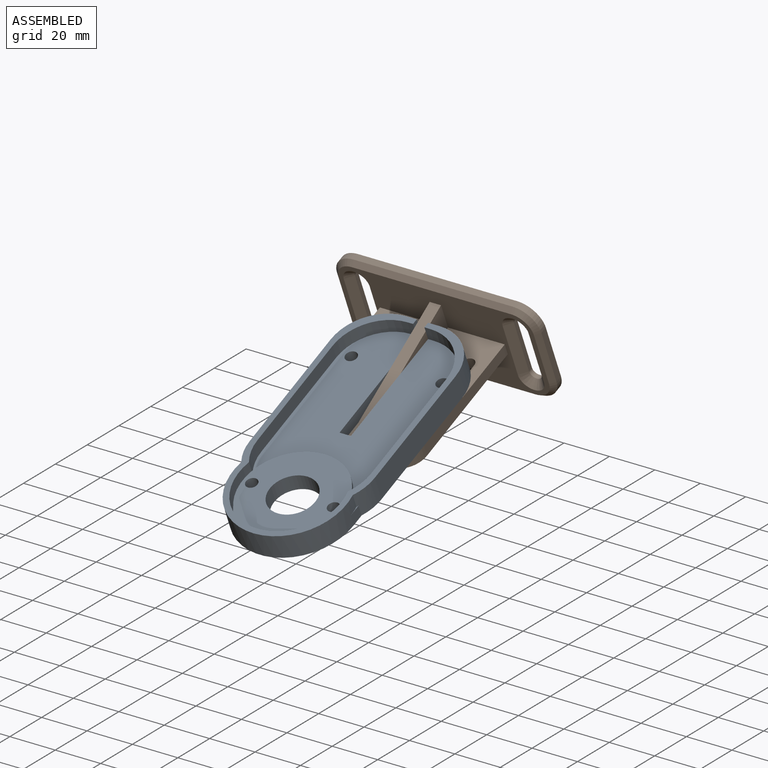
[diagram: assembled view]
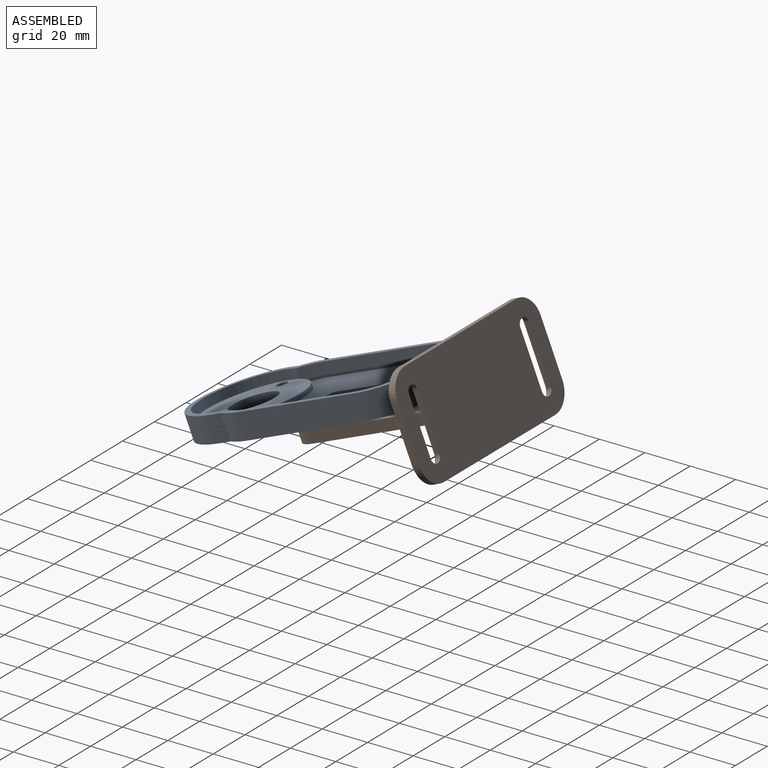
[diagram: assembled view, second angle]
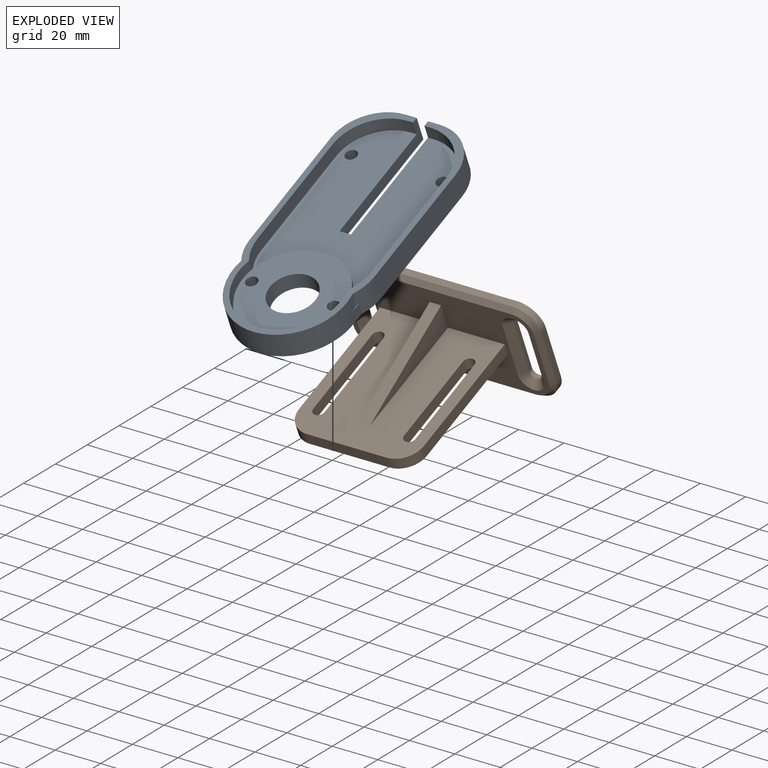
[diagram: exploded view]
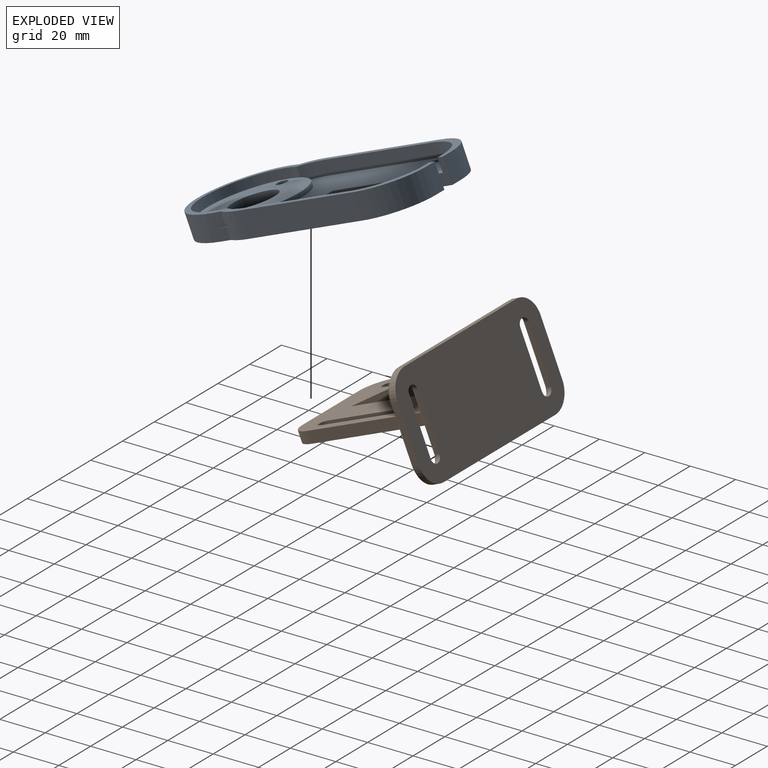
[diagram: exploded view, second angle]
ASSEMBLY  parts=2 mates=2
PART A: 35 faces, bbox 11x55x115 mm
  f0: plane 5.4x0.44mm, normal (-1,0,0), area 0.8mm2, adj f8,f9,f33
  f1: plane 110x50mm, normal (-1,0,0), area 3123.1mm2, adj f3,f4,f5,f11,f12,f16,f21,f22
  f2: plane 11x5mm, normal (0,0,-1), area 55mm2, adj f3,f14,f26,f32
  f3: plane 55x11mm, normal (0,1,0), area 290mm2, adj f1,f2,f4,f14,f24,f26
  f4: plane 5x5mm, normal (0,0,-1), area 25mm2, adj f1,f3,f5,f14
  f5: plane 55x11mm, normal (0,-1,0), area 290mm2, adj f1,f4,f6,f14,f23,f26
  f6: plane 11x5mm, normal (0,0,-1), area 55mm2, adj f5,f14,f26,f31
  f7: plane 54.92x11mm, normal (0,1,0), area 604.1mm2, adj f14,f26,f31,f33
  f8: plane 5.4x5mm, normal (0,1,0), area 27mm2, adj f0,f9,f14,f33
  f9: cylinder r=25mm len=50mm, axis (-1,0,0), area 920.1mm2, adj f0,f8,f10,f14,f15,f26,f33,f34
  f10: plane 5.4x5mm, normal (0,-1,0), area 27mm2, adj f9,f14,f15,f34
  f11: cylinder r=2.5mm len=5mm, axis (-1,0,0), area 78.5mm2, adj f1,f14
  f12: cylinder r=2.5mm len=5mm, axis (-1,0,0), area 78.5mm2, adj f1,f14
  f13: plane 54.92x11mm, normal (0,-1,0), area 604.1mm2, adj f14,f26,f32,f34
  f14: plane 115x55mm, normal (1,0,0), area 5049.7mm2, adj f2,f3,f4,f5,f6,f7,f8,f9
  f15: plane 5.4x0.44mm, normal (-1,0,0), area 0.8mm2, adj f9,f10,f34
  f16: cylinder r=22mm len=44mm, axis (1,0,0), area 276.5mm2, adj f1,f20
  f17: cylinder r=2.5mm len=7mm, axis (1,0,0), area 110mm2, adj f14,f20
  f18: cylinder r=10mm len=20mm, axis (1,0,0), area 439.8mm2, adj f14,f20
  f19: cylinder r=2.5mm len=7mm, axis (1,0,0), area 110mm2, adj f14,f20
  f20: plane 44x44mm, normal (-1,0,0), area 1167.1mm2, adj f16,f17,f18,f19
  f21: cylinder r=22.5mm len=45mm, axis (1,0,0), area 492.1mm2, adj f1,f26,f27,f29
  f22: plane 51.03x6mm, normal (0,-1,0), area 306.2mm2, adj f1,f26,f27,f28
  f23: plane 6x2.5mm, normal (0,0,1), area 15mm2, adj f1,f5,f26,f28
  f24: plane 6x2.5mm, normal (0,0,1), area 15mm2, adj f1,f3,f26,f30
  f25: plane 51.03x6mm, normal (0,1,0), area 306.2mm2, adj f1,f26,f29,f30
  f26: plane 115x55mm, normal (-1,0,0), area 757.7mm2, adj f2,f3,f5,f6,f7,f9,f13,f21
  f27: cylinder r=20mm len=10.87mm, axis (1,0,0), area 68.9mm2, adj f1,f21,f22,f26
  f28: cylinder r=20mm len=20mm, axis (1,0,0), area 188.5mm2, adj f1,f22,f23,f26
  f29: cylinder r=20mm len=10.87mm, axis (-1,0,0), area 68.9mm2, adj f1,f21,f25,f26
  f30: cylinder r=20mm len=20mm, axis (-1,0,0), area 188.5mm2, adj f1,f24,f25,f26
  f31: cylinder r=20mm len=20mm, axis (1,0,0), area 345.6mm2, adj f6,f7,f14,f26
  f32: cylinder r=20mm len=20mm, axis (-1,0,0), area 345.6mm2, adj f2,f13,f14,f26
  f33: cylinder r=20mm len=11mm, axis (1,0,0), area 116.4mm2, adj f0,f7,f8,f9,f14,f26
  f34: cylinder r=20mm len=11mm, axis (-1,0,0), area 116.4mm2, adj f9,f10,f13,f14,f15,f26
PART B: 55 faces, bbox 90x45x70 mm
  f0: plane 65x55mm, normal (0,-1,0), area 2826.1mm2, adj f1,f23,f24,f26,f27,f28,f29,f30
  f1: plane 86x41mm, normal (0,0,1), area 2299mm2, adj f0,f15,f16,f17,f18,f19,f20,f21
  f2: cylinder r=2.75mm len=5.5mm, axis (0,0,-1), area 17.3mm2, adj f3,f13,f14,f15
  f3: plane 25x2mm, normal (-1,0,0), area 50mm2, adj f2,f4,f14,f17
  f4: cylinder r=2.75mm len=5.5mm, axis (0,0,-1), area 17.3mm2, adj f3,f13,f14,f18
  f5: cylinder r=2.75mm len=5.5mm, axis (0,0,-1), area 17.3mm2, adj f6,f11,f14,f19
  f6: plane 25x2mm, normal (-1,0,0), area 50mm2, adj f5,f7,f14,f21
  f7: cylinder r=2.75mm len=5.5mm, axis (0,0,-1), area 17.3mm2, adj f6,f11,f14,f22
  f8: plane 25x3mm, normal (1,0,0), area 75mm2, adj f14,f37,f40,f44
  f9: plane 70x3mm, normal (0,1,0), area 210mm2, adj f14,f37,f38,f48
  f10: plane 25x3mm, normal (-1,0,0), area 75mm2, adj f14,f38,f39,f45
  f11: plane 25x2mm, normal (1,0,0), area 50mm2, adj f5,f7,f14,f20
  f12: plane 70x3mm, normal (0,-1,0), area 210mm2, adj f14,f39,f40,f41
  f13: plane 25x2mm, normal (1,0,0), area 50mm2, adj f2,f4,f14,f16
  f14: plane 90x45mm, normal (0,0,-1), area 3641.6mm2, adj f2,f3,f4,f5,f6,f7,f8,f9
  f15: cone r=2.75mm half-angle=45deg, axis (0,0,1), area 56.6mm2, adj f1,f2,f16,f17
  f16: plane 25x3mm, normal (0.71,0,0.71), area 106.1mm2, adj f1,f13,f15,f18
  f17: plane 25x3mm, normal (-0.71,0,0.71), area 106.1mm2, adj f1,f3,f15,f18
  f18: cone r=2.75mm half-angle=45deg, axis (0,0,1), area 56.6mm2, adj f1,f4,f16,f17
  f19: cone r=2.75mm half-angle=45deg, axis (0,0,1), area 56.6mm2, adj f1,f5,f20,f21
  f20: plane 25x3mm, normal (0.71,0,0.71), area 106.1mm2, adj f1,f11,f19,f22
  f21: plane 25x3mm, normal (-0.71,0,0.71), area 106.1mm2, adj f1,f6,f19,f22
  f22: cone r=2.75mm half-angle=45deg, axis (0,0,1), area 56.6mm2, adj f1,f7,f20,f21
  f23: plane 35x5mm, normal (0,0,1), area 175mm2, adj f0,f25,f35,f36
  f24: plane 55x5mm, normal (-1,0,0), area 275mm2, adj f0,f1,f25,f36
  f25: plane 65x55mm, normal (0,1,0), area 2826.1mm2, adj f1,f23,f24,f26,f27,f28,f29,f30
  f26: plane 55x5mm, normal (1,0,0), area 275mm2, adj f0,f1,f25,f35
  f27: cylinder r=2.5mm len=5mm, axis (0,1,0), area 39.3mm2, adj f0,f25,f28,f30
  f28: plane 40x5mm, normal (1,0,0), area 200mm2, adj f0,f25,f27,f29
  f29: cylinder r=2.5mm len=5mm, axis (0,1,0), area 39.3mm2, adj f0,f25,f28,f30
  f30: plane 40x5mm, normal (-1,0,0), area 200mm2, adj f0,f25,f27,f29
  f31: plane 40x5mm, normal (-1,0,0), area 200mm2, adj f0,f25,f32,f34
  f32: cylinder r=2.5mm len=5mm, axis (0,1,0), area 39.3mm2, adj f0,f25,f31,f33
  f33: plane 40x5mm, normal (1,0,0), area 200mm2, adj f0,f25,f32,f34
  f34: cylinder r=2.5mm len=5mm, axis (0,1,0), area 39.3mm2, adj f0,f25,f31,f33
  f35: cylinder r=10mm len=10mm, axis (0,-1,0), area 78.5mm2, adj f0,f23,f25,f26
  f36: cylinder r=10mm len=10mm, axis (0,1,0), area 78.5mm2, adj f0,f23,f24,f25
  f37: cylinder r=10mm len=10mm, axis (0,0,1), area 47.1mm2, adj f8,f9,f14,f46
  f38: cylinder r=10mm len=10mm, axis (0,0,-1), area 47.1mm2, adj f9,f10,f14,f47
  f39: cylinder r=10mm len=10mm, axis (0,0,1), area 47.1mm2, adj f10,f12,f14,f43
  f40: cylinder r=10mm len=10mm, axis (0,0,-1), area 47.1mm2, adj f8,f12,f14,f42
  f41: plane 70x2mm, normal (0,-0.71,0.71), area 198mm2, adj f1,f12,f42,f43
  f42: cone r=8mm half-angle=45deg, axis (0,0,-1), area 40mm2, adj f1,f40,f41,f44
  f43: cone r=8mm half-angle=45deg, axis (0,0,-1), area 40mm2, adj f1,f39,f41,f45
  f44: plane 25x2mm, normal (0.71,0,0.71), area 70.7mm2, adj f1,f8,f42,f46
  f45: plane 25x2mm, normal (-0.71,0,0.71), area 70.7mm2, adj f1,f10,f43,f47
  f46: cone r=8mm half-angle=45deg, axis (0,0,-1), area 40mm2, adj f1,f37,f44,f48
  f47: cone r=8mm half-angle=45deg, axis (0,0,-1), area 40mm2, adj f1,f38,f45,f48
  f48: plane 70x2mm, normal (0,0.71,0.71), area 198mm2, adj f1,f9,f46,f47
  f49: plane 53.33x11.43mm, normal (1,0,0), area 304.8mm2, adj f1,f25,f51
  f50: plane 53.33x11.43mm, normal (-1,0,0), area 304.8mm2, adj f1,f25,f51
  f51: plane 53.33x11.43mm, normal (0,0.98,0.21), area 272.7mm2, adj f1,f25,f49,f50
  f52: plane 53.33x11.43mm, normal (-1,0,0), area 304.8mm2, adj f0,f1,f54
  f53: plane 53.33x11.43mm, normal (1,0,0), area 304.8mm2, adj f0,f1,f54
  f54: plane 53.33x11.43mm, normal (0,-0.98,0.21), area 272.7mm2, adj f0,f1,f52,f53
PLACE A rot(axis=(0.64,0.64,-0.43),133.7deg) t=(19.28,-66.02,16.09)mm
PLACE B rot(axis=(0,-0.83,0.56),180deg) t=(19.28,32.97,48.87)mm
MATE planar A.f14 <-> B.f0  axis (0,0.38,-0.92) through (19.28,-31.62,24.89)mm
MATE planar A.f3 <-> B.f53  axis (1,0,0) through (16.78,-6.15,38.43)mm
